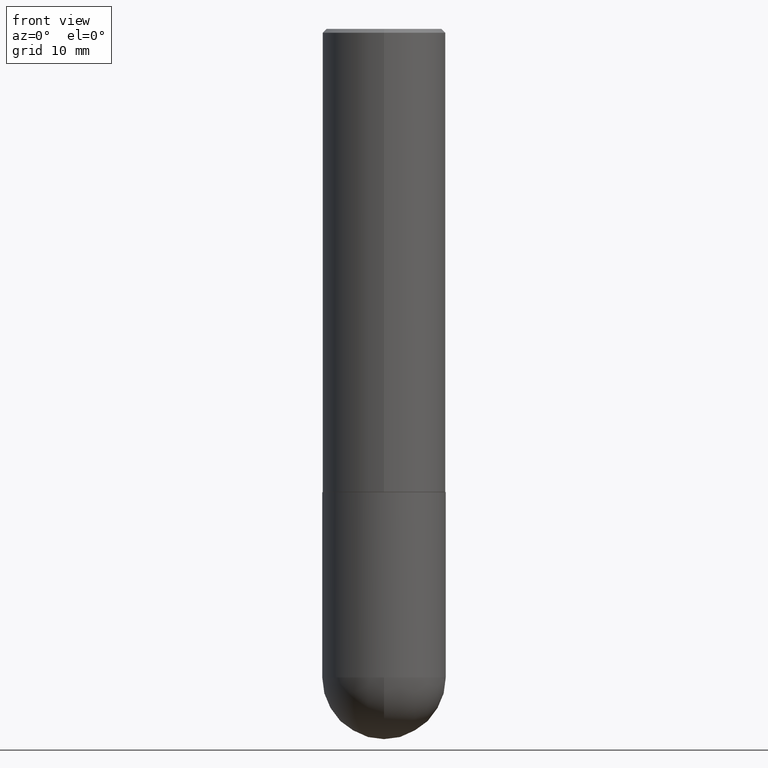
[diagram: clean part render]
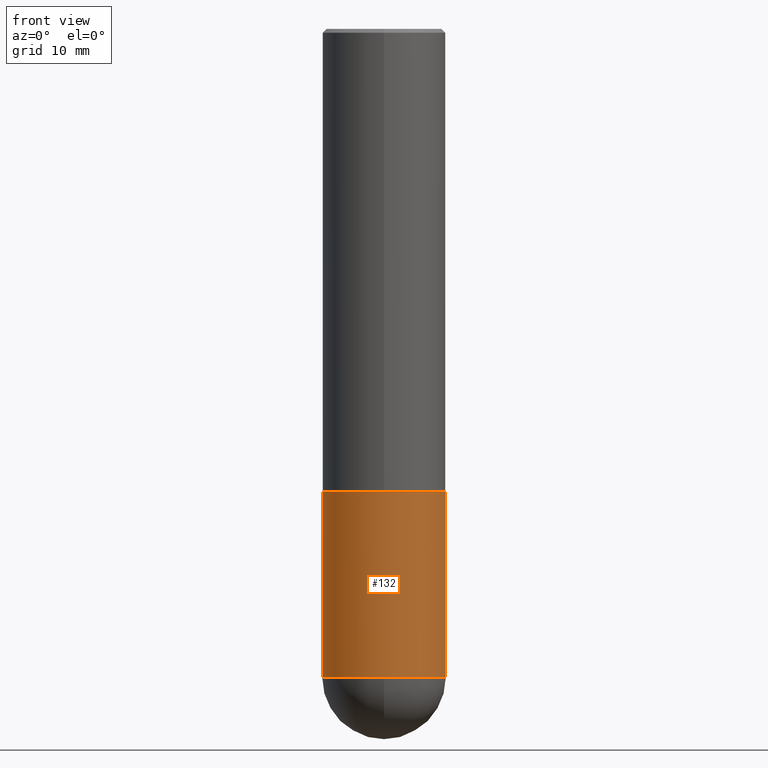
[diagram: same view with one face highlighted and labeled with its STEP entity id]
A machine part, front view. The second image highlights one B-rep face of the part: STEP entity #132.
In plain terms, the highlighted cylindrical surface (partial cylindrical patch) has radius 7.9997 mm, axis along (-0, 0, 1).
Its self-contained STEP definition (entity closure, byte-faithful):
#1 = ORIENTED_EDGE ( 'NONE', *, *, #333, .T. ) ;
#5 = EDGE_CURVE ( 'NONE', #285, #362, #358, .T. ) ;
#9 = DIRECTION ( 'NONE',  ( 1.000000000000000000, -6.982962677686266711E-15, 4.876176775795936353E-29 ) ) ;
#10 = CIRCLE ( 'NONE', #226, 0.3149500000000000077 ) ;
#11 = EDGE_CURVE ( 'NONE', #362, #318, #378, .T. ) ;
#23 = CARTESIAN_POINT ( 'NONE',  ( 5.776686413970529753E-29, -8.247577218615278049E-15, -2.362199999999999633 ) ) ;
#27 = EDGE_LOOP ( 'NONE', ( #128, #1, #393, #97, #156 ) ) ;
#29 = VERTEX_POINT ( 'NONE', #113 ) ;
#34 = DIRECTION ( 'NONE',  ( 1.000000000000000000, -6.982962677686269866E-15, 0.000000000000000000 ) ) ;
#43 = CARTESIAN_POINT ( 'NONE',  ( 0.3149500000000000077, -2.199284095337289871E-15, 1.535751875536930130E-29 ) ) ;
#45 = CARTESIAN_POINT ( 'NONE',  ( 0.3149500000000000077, -1.044686131395256792E-14, -2.362199999999999633 ) ) ;
#46 = CARTESIAN_POINT ( 'NONE',  ( -0.3149500000000000077, 2.237854346276435590E-15, -1.549218606675782676E-29 ) ) ;
#49 = DIRECTION ( 'NONE',  ( -2.445468806185136877E-29, 3.491481338843145188E-15, 1.000000000000000000 ) ) ;
#56 = VECTOR ( 'NONE', #397, 39.37007874015748143 ) ;
#66 = CARTESIAN_POINT ( 'NONE',  ( 8.087287615494557476E-29, -1.154650336162122627E-14, -3.307050000000000267 ) ) ;
#76 = DIRECTION ( 'NONE',  ( 1.000000000000000000, -6.982962677686269866E-15, 0.000000000000000000 ) ) ;
#84 = VECTOR ( 'NONE', #49, 39.37007874015748143 ) ;
#97 = ORIENTED_EDGE ( 'NONE', *, *, #191, .T. ) ;
#103 = CARTESIAN_POINT ( 'NONE',  ( 8.087287615494557476E-29, -1.154650336162122627E-14, -3.307050000000000267 ) ) ;
#113 = CARTESIAN_POINT ( 'NONE',  ( 0.3149500000000000077, -1.209632438545554361E-14, -3.307050000000000267 ) ) ;
#128 = ORIENTED_EDGE ( 'NONE', *, *, #5, .F. ) ;
#132 = ADVANCED_FACE ( 'NONE', ( #263 ), #267, .T. ) ;
#149 = DIRECTION ( 'NONE',  ( -2.445468806185136597E-29, 3.491481338843145583E-15, 1.000000000000000000 ) ) ;
#152 = EDGE_CURVE ( 'NONE', #233, #29, #260, .T. ) ;
#156 = ORIENTED_EDGE ( 'NONE', *, *, #11, .F. ) ;
#170 = DIRECTION ( 'NONE',  ( -2.445468806185136597E-29, 3.491481338843145583E-15, 1.000000000000000000 ) ) ;
#191 = EDGE_CURVE ( 'NONE', #29, #318, #275, .T. ) ;
#198 = AXIS2_PLACEMENT_3D ( 'NONE', #379, #291, #9 ) ;
#210 = AXIS2_PLACEMENT_3D ( 'NONE', #66, #170, #34 ) ;
#225 = CARTESIAN_POINT ( 'NONE',  ( -2.237854346276355915E-15, -0.3149500000000118871, -3.307049999999999379 ) ) ;
#226 = AXIS2_PLACEMENT_3D ( 'NONE', #103, #240, #76 ) ;
#233 = VERTEX_POINT ( 'NONE', #225 ) ;
#240 = DIRECTION ( 'NONE',  ( -2.445468806185136597E-29, 3.491481338843145583E-15, 1.000000000000000000 ) ) ;
#243 = CARTESIAN_POINT ( 'NONE',  ( -0.3149500000000000077, -7.659185943841816172E-15, -2.362199999999999633 ) ) ;
#247 = AXIS2_PLACEMENT_3D ( 'NONE', #23, #149, #401 ) ;
#260 = CIRCLE ( 'NONE', #210, 0.3149500000000000077 ) ;
#262 = CARTESIAN_POINT ( 'NONE',  ( -0.3149500000000000077, -7.659185943841817750E-15, -3.307050000000000267 ) ) ;
#263 = FACE_OUTER_BOUND ( 'NONE', #27, .T. ) ;
#267 = CYLINDRICAL_SURFACE ( 'NONE', #198, 0.3149500000000000077 ) ;
#275 = LINE ( 'NONE', #43, #56 ) ;
#285 = VERTEX_POINT ( 'NONE', #262 ) ;
#291 = DIRECTION ( 'NONE',  ( -2.445468806185136597E-29, 3.491481338843145583E-15, 1.000000000000000000 ) ) ;
#318 = VERTEX_POINT ( 'NONE', #45 ) ;
#333 = EDGE_CURVE ( 'NONE', #285, #233, #10, .T. ) ;
#358 = LINE ( 'NONE', #46, #84 ) ;
#362 = VERTEX_POINT ( 'NONE', #243 ) ;
#378 = CIRCLE ( 'NONE', #247, 0.3149500000000000077 ) ;
#379 = CARTESIAN_POINT ( 'NONE',  ( 0.000000000000000000, 0.000000000000000000, 0.000000000000000000 ) ) ;
#393 = ORIENTED_EDGE ( 'NONE', *, *, #152, .T. ) ;
#397 = DIRECTION ( 'NONE',  ( -2.445468806185136877E-29, 3.491481338843145188E-15, 1.000000000000000000 ) ) ;
#401 = DIRECTION ( 'NONE',  ( 1.000000000000000000, -6.982962677686266711E-15, 0.000000000000000000 ) ) ;